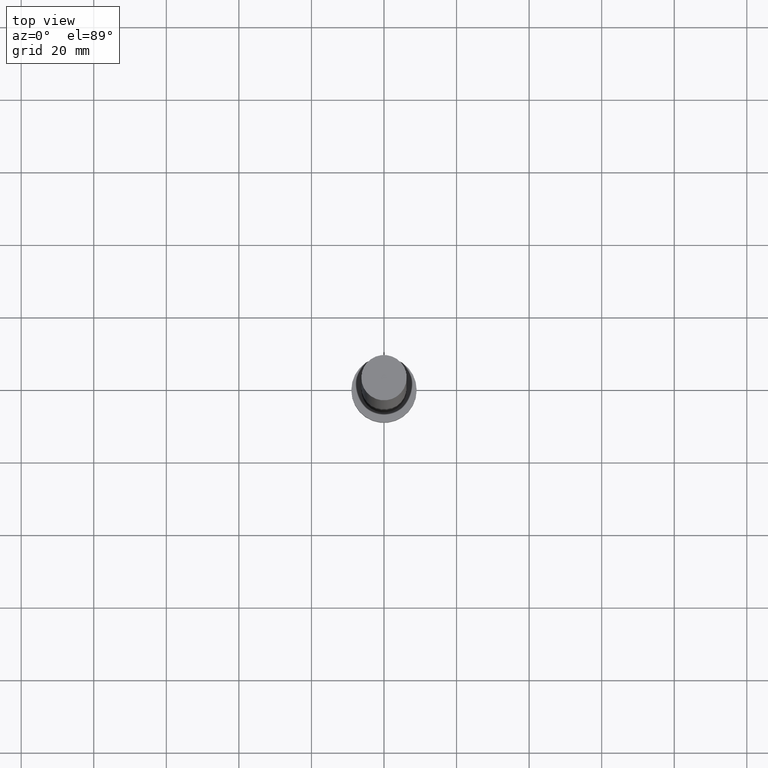
[diagram: clean part render]
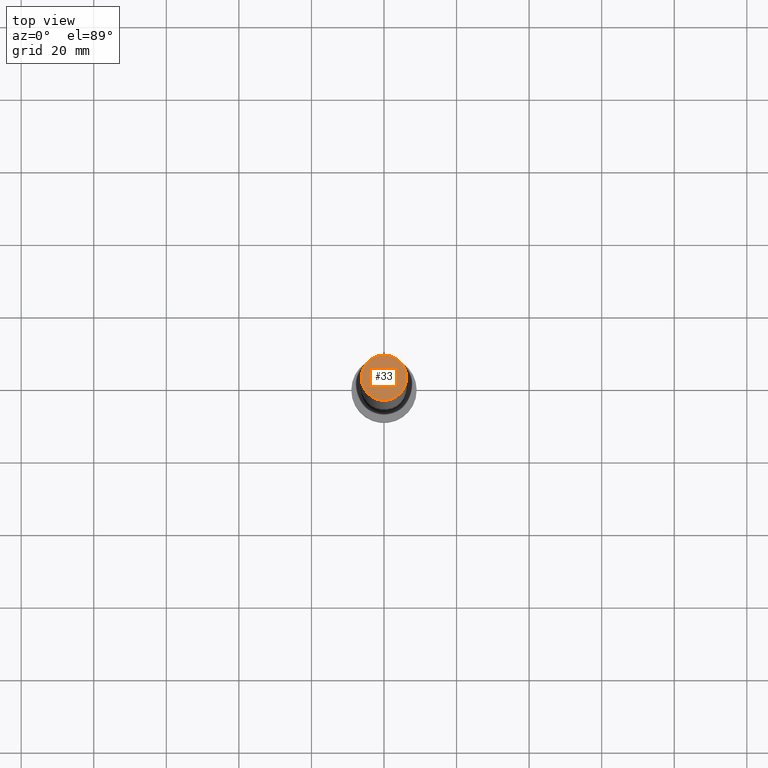
[diagram: same view with one face highlighted and labeled with its STEP entity id]
A machine part, top view. The second image highlights one B-rep face of the part: STEP entity #33.
In plain terms, the highlighted planar face has unit normal (0, 0, 1).
Its self-contained STEP definition (entity closure, byte-faithful):
#4 = ORIENTED_EDGE ( 'NONE', *, *, #147, .T. ) ;
#15 = CARTESIAN_POINT ( 'NONE',  ( 0.000000000000000000, 0.000000000000000000, 200.0000000000000000 ) ) ;
#33 = ADVANCED_FACE ( 'NONE', ( #190 ), #40, .T. ) ;
#40 = PLANE ( 'NONE',  #124 ) ;
#47 = AXIS2_PLACEMENT_3D ( 'NONE', #233, #60, #163 ) ;
#60 = DIRECTION ( 'NONE',  ( 0.000000000000000000, 0.000000000000000000, 1.000000000000000000 ) ) ;
#69 = VERTEX_POINT ( 'NONE', #78 ) ;
#78 = CARTESIAN_POINT ( 'NONE',  ( 6.250000000000000000, 7.654042494670957606E-16, 200.0000000000000000 ) ) ;
#91 = DIRECTION ( 'NONE',  ( 1.000000000000000000, 0.000000000000000000, 0.000000000000000000 ) ) ;
#94 = EDGE_CURVE ( 'NONE', #69, #121, #133, .T. ) ;
#102 = ORIENTED_EDGE ( 'NONE', *, *, #94, .T. ) ;
#112 = DIRECTION ( 'NONE',  ( 0.000000000000000000, 0.000000000000000000, 1.000000000000000000 ) ) ;
#117 = CARTESIAN_POINT ( 'NONE',  ( 0.000000000000000000, 0.000000000000000000, 200.0000000000000000 ) ) ;
#121 = VERTEX_POINT ( 'NONE', #187 ) ;
#124 = AXIS2_PLACEMENT_3D ( 'NONE', #15, #112, #192 ) ;
#125 = EDGE_LOOP ( 'NONE', ( #4, #102 ) ) ;
#133 = CIRCLE ( 'NONE', #47, 6.250000000000000000 ) ;
#147 = EDGE_CURVE ( 'NONE', #121, #69, #177, .T. ) ;
#163 = DIRECTION ( 'NONE',  ( 1.000000000000000000, 0.000000000000000000, 0.000000000000000000 ) ) ;
#177 = CIRCLE ( 'NONE', #234, 6.250000000000000000 ) ;
#187 = CARTESIAN_POINT ( 'NONE',  ( -6.250000000000000000, 0.000000000000000000, 200.0000000000000000 ) ) ;
#190 = FACE_OUTER_BOUND ( 'NONE', #125, .T. ) ;
#192 = DIRECTION ( 'NONE',  ( 1.000000000000000000, 0.000000000000000000, -0.000000000000000000 ) ) ;
#198 = DIRECTION ( 'NONE',  ( 0.000000000000000000, 0.000000000000000000, 1.000000000000000000 ) ) ;
#233 = CARTESIAN_POINT ( 'NONE',  ( 0.000000000000000000, 0.000000000000000000, 200.0000000000000000 ) ) ;
#234 = AXIS2_PLACEMENT_3D ( 'NONE', #117, #198, #91 ) ;